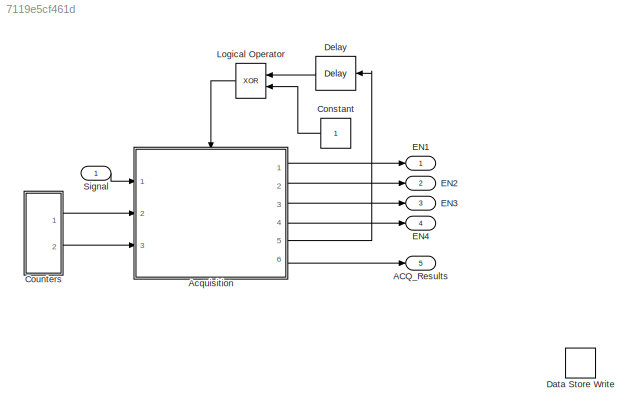
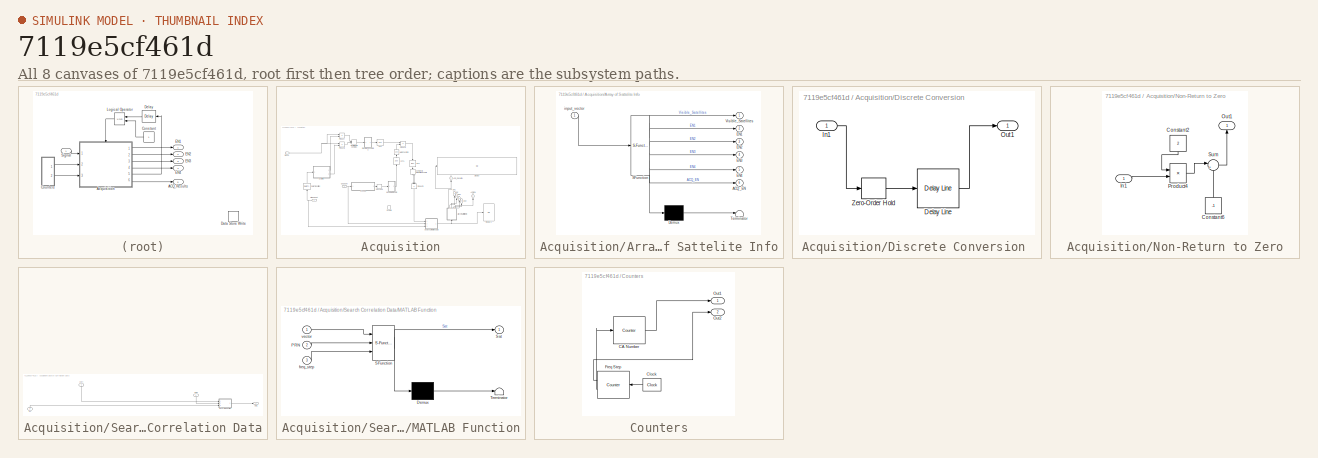
[diagram: thumbnail index - all 8 canvases of the model, root first then tree order]
MODEL slx_7119e5cf461d
KIND model
CONFIG AbsTol = auto
CONFIG EnableMultiTasking = off
CONFIG FixedStep = auto
CONFIG MaxStep = auto
CONFIG MinStep = auto
CONFIG RelTol = 1e-3
CONFIG SampleTimeConstraint = Unconstrained
CONFIG Solver = VariableStepAuto
CONFIG SolverName = VariableStepAuto
CONFIG StartTime = 0.0
CONFIG StopTime = 1
BLOCK [Outport] ACQ_Results
  IconDisplay = Port number
  Port = 5
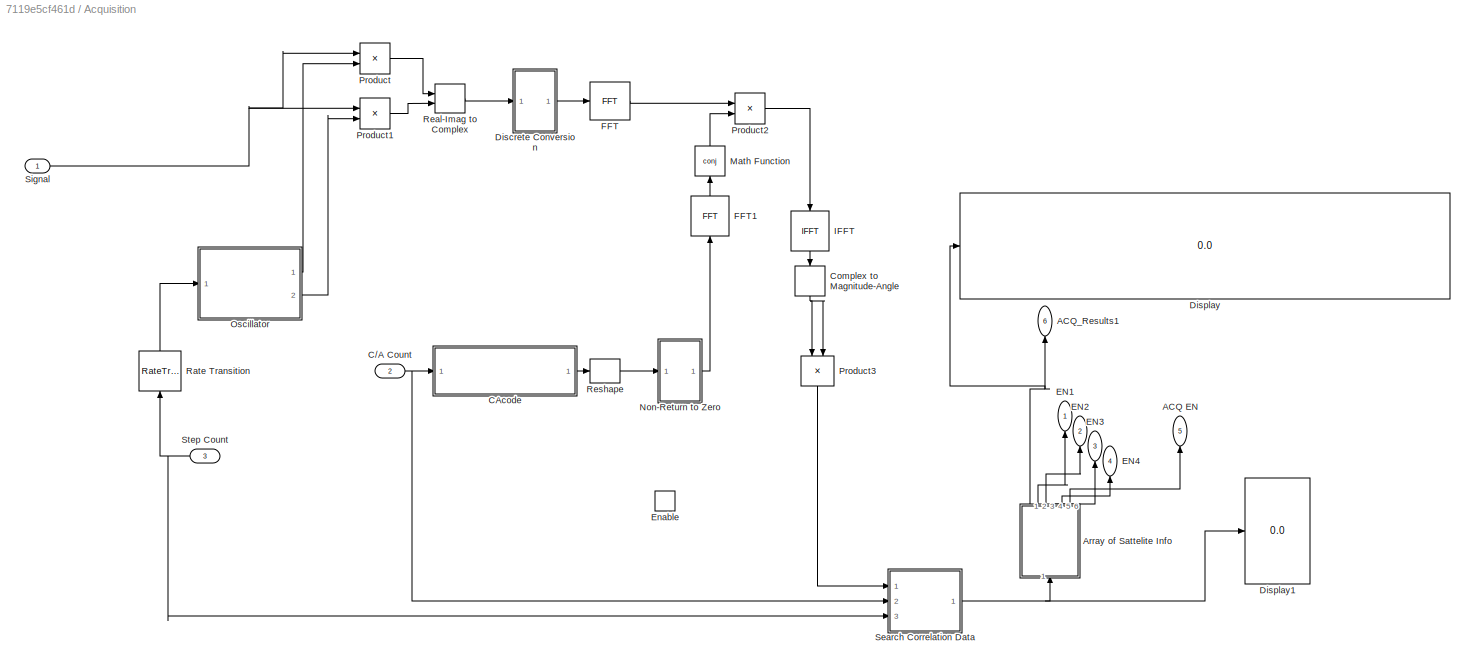
BLOCK [SubSystem] Acquisition
  Ports = [3, 6, 1]
  RequestExecContextInheritance = off
  Variant = off
BLOCK [Outport] Acquisition/ACQ EN
  IconDisplay = Port number
  Port = 5
  SampleTime = 0.021
BLOCK [Outport] Acquisition/ACQ_Results1
  IconDisplay = Port number
  Port = 6
  SampleTime = 0.021
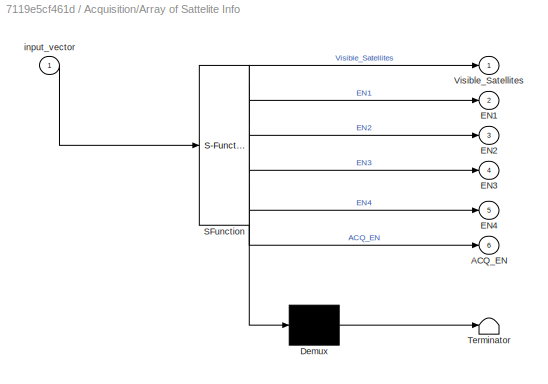
BLOCK [SubSystem] Acquisition/Array of Sattelite Info
  ErrorFcn = Stateflow.Translate.translate
  PermitHierarchicalResolution = ExplicitOnly
  Ports = [1, 6]
  RequestExecContextInheritance = off
  SFBlockType = MATLAB Function
  SystemSampleTime = 0.001
  TreatAsAtomicUnit = on
  Variant = off
BLOCK [Demux] Acquisition/Array of Sattelite Info/ Demux 
  Outputs = 1
  Ports = [1, 1]
BLOCK [S-Function] Acquisition/Array of Sattelite Info/ SFunction 
  EnableBusSupport = on
  FunctionName = sf_sfun
  PortCounts = [1 7]
  Ports = [1, 7]
  SFcnIsStateOwnerBlock = off
  SFunctionDeploymentMode = off
  Tag = Stateflow S-Function Acquisition 1
BLOCK [Terminator] Acquisition/Array of Sattelite Info/ Terminator 
BLOCK [Outport] Acquisition/Array of Sattelite Info/ACQ_EN
  IconDisplay = Port number
  Port = 6
BLOCK [Outport] Acquisition/Array of Sattelite Info/EN1
  IconDisplay = Port number
  Port = 2
BLOCK [Outport] Acquisition/Array of Sattelite Info/EN2
  IconDisplay = Port number
  Port = 3
BLOCK [Outport] Acquisition/Array of Sattelite Info/EN3
  IconDisplay = Port number
  Port = 4
BLOCK [Outport] Acquisition/Array of Sattelite Info/EN4
  IconDisplay = Port number
  Port = 5
BLOCK [Outport] Acquisition/Array of Sattelite Info/Visible_Satellites
  IconDisplay = Port number
BLOCK [Inport] Acquisition/Array of Sattelite Info/input_vector
  IconDisplay = Port number
BLOCK [Inport] Acquisition/C//A Count
  IconDisplay = Port number
  Port = 2
BLOCK [ModelReference] Acquisition/CAcode
  ModelNameDialog = CAcode.mdl
  ModelReferenceVersion = 1.53
  Ports = [1, 1]
  Variant = off
BLOCK [ComplexToMagnitudeAngle] Acquisition/Complex to Magnitude-Angle
  Output = Magnitude
  Ports = [1, 1]
BLOCK [SubSystem] Acquisition/Discrete Conversion 
  Ports = [1, 1]
  RequestExecContextInheritance = off
  TreatAsAtomicUnit = on
  Variant = off
BLOCK [Reference] Acquisition/Discrete Conversion /Delay Line  REF=dspbuff3/Delay Line
  Ports = [1, 1]
  SourceBlock = dspbuff3/Delay Line
  SourceProductBaseCode = DS
  SourceProductName = DSP System Toolbox
  SourceType = Delay Line
  UserDataPersistent = on
BLOCK [Inport] Acquisition/Discrete Conversion /In1
  IconDisplay = Port number
BLOCK [Outport] Acquisition/Discrete Conversion /Out1
  IconDisplay = Port number
  SampleTime = 0.001
BLOCK [ZeroOrderHold] Acquisition/Discrete Conversion /Zero-Order Hold
  SampleTime = 3.05175781e-8
BLOCK [Display] Acquisition/Display
  Decimation = 1
  Format = long
  Ports = [1]
BLOCK [Display] Acquisition/Display1
  Decimation = 1
  Ports = [1]
BLOCK [Outport] Acquisition/EN1
  IconDisplay = Port number
  SampleTime = 0.021
BLOCK [Outport] Acquisition/EN2
  IconDisplay = Port number
  Port = 2
  SampleTime = 0.021
BLOCK [Outport] Acquisition/EN3
  IconDisplay = Port number
  Port = 3
  SampleTime = 0.021
BLOCK [Outport] Acquisition/EN4
  IconDisplay = Port number
  Port = 4
  SampleTime = 0.021
BLOCK [EnablePort] Acquisition/Enable
  Ports = []
BLOCK [Reference] Acquisition/FFT  REF=dspxfrm3/FFT
  Ports = [1, 1]
  SourceBlock = dspxfrm3/FFT
  SourceProductBaseCode = DS
  SourceProductName = DSP System Toolbox
  SourceType = FFT
BLOCK [Reference] Acquisition/FFT1  REF=dspxfrm3/FFT
  Ports = [1, 1]
  SourceBlock = dspxfrm3/FFT
  SourceProductBaseCode = DS
  SourceProductName = DSP System Toolbox
  SourceType = FFT
BLOCK [Reference] Acquisition/IFFT  REF=dspxfrm3/IFFT
  Ports = [1, 1]
  SourceBlock = dspxfrm3/IFFT
  SourceProductBaseCode = DS
  SourceProductName = DSP System Toolbox
  SourceType = IFFT
BLOCK [Math] Acquisition/Math Function
  Operator = conj
  Ports = [1, 1]
BLOCK [SubSystem] Acquisition/Non-Return to Zero
  Ports = [1, 1]
  RequestExecContextInheritance = off
  TreatAsAtomicUnit = on
  Variant = off
BLOCK [Constant] Acquisition/Non-Return to Zero/Constant2
  Value = 2
BLOCK [Constant] Acquisition/Non-Return to Zero/Constant6
  Value = -1
BLOCK [Inport] Acquisition/Non-Return to Zero/In1
  IconDisplay = Port number
BLOCK [Outport] Acquisition/Non-Return to Zero/Out1
  IconDisplay = Port number
BLOCK [Product] Acquisition/Non-Return to Zero/Product4
  InputSameDT = off
  OutDataTypeStr = Inherit: Inherit via internal rule
  Ports = [2, 1]
  RndMeth = Floor
  SaturateOnIntegerOverflow = off
BLOCK [Sum] Acquisition/Non-Return to Zero/Sum
  IconShape = round
  InputSameDT = off
  Inputs = |++
  OutDataTypeStr = Inherit: Inherit via internal rule
  Ports = [2, 1]
  SaturateOnIntegerOverflow = off
BLOCK [ModelReference] Acquisition/Oscillator
  ModelNameDialog = Local_Oscillator.slx
  ModelReferenceVersion = 1.41
  Ports = [1, 2]
  Variant = off
BLOCK [Product] Acquisition/Product
  InputSameDT = off
  OutDataTypeStr = Inherit: Inherit via internal rule
  Ports = [2, 1]
  RndMeth = Floor
  SaturateOnIntegerOverflow = off
BLOCK [Product] Acquisition/Product1
  InputSameDT = off
  OutDataTypeStr = Inherit: Inherit via internal rule
  Ports = [2, 1]
  RndMeth = Floor
  SaturateOnIntegerOverflow = off
BLOCK [Product] Acquisition/Product2
  InputSameDT = off
  OutDataTypeStr = Inherit: Inherit via internal rule
  Ports = [2, 1]
  RndMeth = Floor
  SaturateOnIntegerOverflow = off
BLOCK [Product] Acquisition/Product3
  InputSameDT = off
  OutDataTypeStr = Inherit: Inherit via internal rule
  Ports = [2, 1]
  RndMeth = Floor
  SaturateOnIntegerOverflow = off
BLOCK [RateTransition] Acquisition/Rate Transition
BLOCK [RealImagToComplex] Acquisition/Real-Imag to Complex
  Ports = [2, 1]
BLOCK [Reshape] Acquisition/Reshape
  OutputDimensionality = Column vector (2-D)
  Ports = [1, 1]
BLOCK [SubSystem] Acquisition/Search Correlation Data
  Ports = [3, 1]
  RequestExecContextInheritance = off
  TreatAsAtomicUnit = on
  Variant = off
BLOCK [Inport] Acquisition/Search Correlation Data/In3
  IconDisplay = Port number
  Port = 3
  SampleTime = 0.001
  VarSizeSig = No
BLOCK [SubSystem] Acquisition/Search Correlation Data/MATLAB Function
  ErrorFcn = Stateflow.Translate.translate
  PermitHierarchicalResolution = ExplicitOnly
  Ports = [3, 1]
  RequestExecContextInheritance = off
  SFBlockType = MATLAB Function
  SystemSampleTime = 0.001
  TreatAsAtomicUnit = on
  Variant = off
BLOCK [Demux] Acquisition/Search Correlation Data/MATLAB Function/ Demux 
  Outputs = 1
  Ports = [1, 1]
BLOCK [S-Function] Acquisition/Search Correlation Data/MATLAB Function/ SFunction 
  EnableBusSupport = on
  FunctionName = sf_sfun
  PortCounts = [3 2]
  Ports = [3, 2]
  SFcnIsStateOwnerBlock = off
  SFunctionDeploymentMode = off
  Tag = Stateflow S-Function Acquisition 2
BLOCK [Terminator] Acquisition/Search Correlation Data/MATLAB Function/ Terminator 
BLOCK [Inport] Acquisition/Search Correlation Data/MATLAB Function/PRN
  IconDisplay = Port number
  Port = 2
BLOCK [Outport] Acquisition/Search Correlation Data/MATLAB Function/Sat
  IconDisplay = Port number
BLOCK [Inport] Acquisition/Search Correlation Data/MATLAB Function/freq_step
  IconDisplay = Port number
  Port = 3
BLOCK [Inport] Acquisition/Search Correlation Data/MATLAB Function/vector
  IconDisplay = Port number
BLOCK [Outport] Acquisition/Search Correlation Data/Out1
  IconDisplay = Port number
  VarSizeSig = No
BLOCK [Inport] Acquisition/Search Correlation Data/PRN
  IconDisplay = Port number
  Port = 2
  SampleTime = 0.001
  VarSizeSig = No
BLOCK [Inport] Acquisition/Search Correlation Data/corr
  IconDisplay = Port number
  PortDimensions = [32768 1]
  SampleTime = 0.001
BLOCK [Inport] Acquisition/Signal
  IconDisplay = Port number
BLOCK [Inport] Acquisition/Step Count
  IconDisplay = Port number
  Port = 3
BLOCK [Constant] Constant
BLOCK [SubSystem] Counters
  Ports = [0, 2]
  RequestExecContextInheritance = off
  TreatAsAtomicUnit = on
  Variant = off
BLOCK [Reference] Counters/CA Number  REF=dspswit3/Counter
  Ports = [1, 1]
  SourceBlock = dspswit3/Counter
  SourceProductBaseCode = DS
  SourceProductName = DSP System Toolbox
  SourceType = Counter
BLOCK [Reference] Counters/Clock  REF=simulink_extras/Flip Flops/Clock
  Ports = [0, 1]
  SourceBlock = simulink_extras/Flip Flops/Clock
  SourceProductBaseCode = SL
  SourceProductName = Simulink
  SourceType = Digital clock
BLOCK [Reference] Counters/Freq Step  REF=dspswit3/Counter
  Ports = [1, 2]
  SourceBlock = dspswit3/Counter
  SourceProductBaseCode = DS
  SourceProductName = DSP System Toolbox
  SourceType = Counter
BLOCK [Outport] Counters/Out1
  IconDisplay = Port number
BLOCK [Outport] Counters/Out2
  IconDisplay = Port number
  Port = 2
BLOCK [DataStoreWrite] Data Store Write
  Commented = on
  DataStoreName = ACQ_Values
  Ports = [1]
BLOCK [Delay] Delay
  DelayLength = 1
  InitialCondition = 0
  InputPortMap = u0
  Ports = [1, 1]
BLOCK [Outport] EN1
  IconDisplay = Port number
BLOCK [Outport] EN2
  IconDisplay = Port number
  Port = 2
BLOCK [Outport] EN3
  IconDisplay = Port number
  Port = 3
BLOCK [Outport] EN4
  IconDisplay = Port number
  Port = 4
BLOCK [Logic] Logical Operator
  AllPortsSameDT = off
  Operator = XOR
  OutDataTypeStr = boolean
  Ports = [2, 1]
BLOCK [Inport] Signal
  IconDisplay = Port number
NET Acquisition/Array of Sattelite Info:1 -> Acquisition/ACQ_Results1:1, Acquisition/Display:1
LINE Acquisition/Array of Sattelite Info:2 -> Acquisition/EN1:1
LINE Acquisition/Array of Sattelite Info:3 -> Acquisition/EN2:1
LINE Acquisition/Array of Sattelite Info:4 -> Acquisition/EN3:1
LINE Acquisition/Array of Sattelite Info:5 -> Acquisition/EN4:1
LINE Acquisition/Array of Sattelite Info:6 -> Acquisition/ACQ EN:1
NET Acquisition/C//A Count:1 -> Acquisition/CAcode:1, Acquisition/Search Correlation Data:2
LINE Acquisition/CAcode:1 -> Acquisition/Reshape:1
NET Acquisition/Complex to Magnitude-Angle:1 -> Acquisition/Product3:1, Acquisition/Product3:2
LINE Acquisition/Discrete Conversion /Delay Line:1 -> Acquisition/Discrete Conversion /Out1:1
LINE Acquisition/Discrete Conversion /In1:1 -> Acquisition/Discrete Conversion /Zero-Order Hold:1
LINE Acquisition/Discrete Conversion /Zero-Order Hold:1 -> Acquisition/Discrete Conversion /Delay Line:1
LINE Acquisition/Discrete Conversion :1 -> Acquisition/FFT:1
LINE Acquisition/FFT1:1 -> Acquisition/Math Function:1
LINE Acquisition/FFT:1 -> Acquisition/Product2:1
LINE Acquisition/IFFT:1 -> Acquisition/Complex to Magnitude-Angle:1
LINE Acquisition/Math Function:1 -> Acquisition/Product2:2
LINE Acquisition/Non-Return to Zero/Constant2:1 -> Acquisition/Non-Return to Zero/Product4:1
LINE Acquisition/Non-Return to Zero/Constant6:1 -> Acquisition/Non-Return to Zero/Sum:2
LINE Acquisition/Non-Return to Zero/In1:1 -> Acquisition/Non-Return to Zero/Product4:2
LINE Acquisition/Non-Return to Zero/Product4:1 -> Acquisition/Non-Return to Zero/Sum:1
LINE Acquisition/Non-Return to Zero/Sum:1 -> Acquisition/Non-Return to Zero/Out1:1
LINE Acquisition/Non-Return to Zero:1 -> Acquisition/FFT1:1
LINE Acquisition/Oscillator:1 -> Acquisition/Product:2
LINE Acquisition/Oscillator:2 -> Acquisition/Product1:2
LINE Acquisition/Product1:1 -> Acquisition/Real-Imag to Complex:2
LINE Acquisition/Product2:1 -> Acquisition/IFFT:1
LINE Acquisition/Product3:1 -> Acquisition/Search Correlation Data:1
LINE Acquisition/Product:1 -> Acquisition/Real-Imag to Complex:1
LINE Acquisition/Rate Transition:1 -> Acquisition/Oscillator:1
LINE Acquisition/Real-Imag to Complex:1 -> Acquisition/Discrete Conversion :1
LINE Acquisition/Reshape:1 -> Acquisition/Non-Return to Zero:1
LINE Acquisition/Search Correlation Data/In3:1 -> Acquisition/Search Correlation Data/MATLAB Function:3
LINE Acquisition/Search Correlation Data/MATLAB Function:1 -> Acquisition/Search Correlation Data/Out1:1
LINE Acquisition/Search Correlation Data/PRN:1 -> Acquisition/Search Correlation Data/MATLAB Function:2
LINE Acquisition/Search Correlation Data/corr:1 -> Acquisition/Search Correlation Data/MATLAB Function:1
NET Acquisition/Search Correlation Data:1 -> Acquisition/Array of Sattelite Info:1, Acquisition/Display1:1
NET Acquisition/Signal:1 -> Acquisition/Product1:1, Acquisition/Product:1
NET Acquisition/Step Count:1 -> Acquisition/Rate Transition:1, Acquisition/Search Correlation Data:3
LINE Acquisition:1 -> EN1:1
LINE Acquisition:2 -> EN2:1
LINE Acquisition:3 -> EN3:1
LINE Acquisition:4 -> EN4:1
LINE Acquisition:5 -> Delay:1
LINE Acquisition:6 -> ACQ_Results:1
LINE Constant:1 -> Logical Operator:2
LINE Counters/CA Number:1 -> Counters/Out1:1
LINE Counters/Clock:1 -> Counters/Freq Step:1
LINE Counters/Freq Step:1 -> Counters/Out2:1
LINE Counters/Freq Step:2 -> Counters/CA Number:1
LINE Counters:1 -> Acquisition:2
LINE Counters:2 -> Acquisition:3
LINE Delay:1 -> Logical Operator:1
LINE Logical Operator:1 -> Acquisition:enable
LINE Signal:1 -> Acquisition:1
note: NET lines group one-source signal fan-out (src -> all destinations, sorted); 1:1 wires keep LINE
CHART Acquisition/Array of Sattelite Info states=1 transitions=1
  STATE_LABEL 'eML_blk_kernel()'
  STATE_LABEL 'SCRIPT:\nfunction [Visible_Satellites, EN1, EN2, EN3, EN4, ACQ_EN]= sort_store(input_vector)\npersistent output_vector;\npersistent found;\npersistent find1;\npersistent find2;\npersistent find3;\npersistent find4;\npersistent PRN_prev;\npersistent flag;\npersistent ACQ_off;\nthreshold = 2*10^7;\nif isempty(find4)\n    find1=0;\n    find2=0;\n    find3=0;\n    find4=0;\n    flag=0;\n    PRN_prev=0;\n    ACQ_off=0;\ne...<+834ch>'
CHART Acquisition/Search Correlation Data/MATLAB Function states=1 transitions=1
  STATE_LABEL 'eML_blk_kernel()'
  STATE_LABEL 'SCRIPT:\nfunction Sat = find(vector, PRN, freq_step)\nPRN=PRN+1;\nfreq_step=freq_step-2;\nFreq =9207000+freq_step*500-5000;\npersistent PRN_prev;\nif isempty(PRN_prev)\n    PRN_prev=0;\nend\npersistent sat_vector;\nif isempty(sat_vector)\n    sat_vector=zeros(5,1);\nend\nif PRN_prev ~= PRN\n    sat_vector(1,1)=0;\n    sat_vector(2,1)=0;\n    sat_vector(3,1)=0;\n    sat_vector(4,1)=0;\n    sat_vector(5,1)=0;\nend\nfor...<+271ch>'
